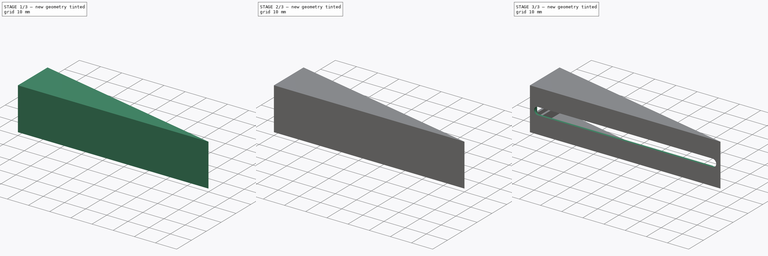
[diagram: build sequence overview — one tinted view per stage of 3, left to right]
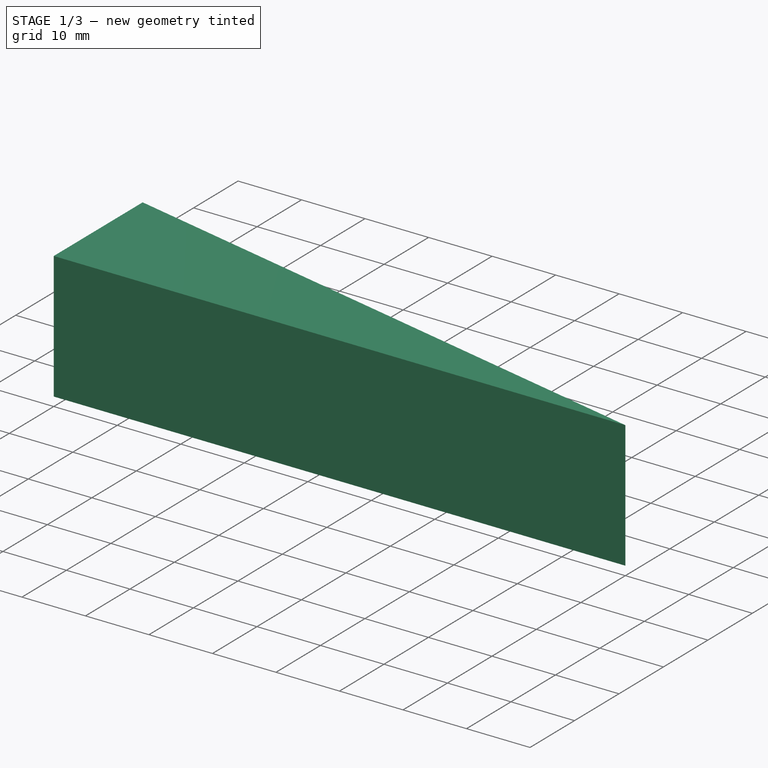
[diagram: stage 1 of 3 — iso view after this stage's code; geometry added in this stage tinted green]
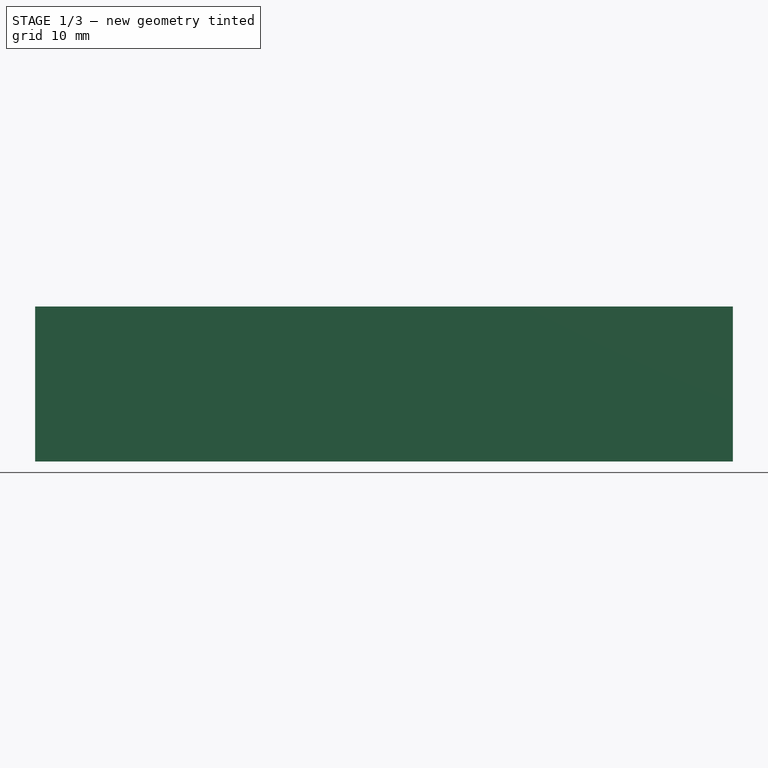
[diagram: stage 1 of 3 — front view after this stage's code; geometry added in this stage tinted green]
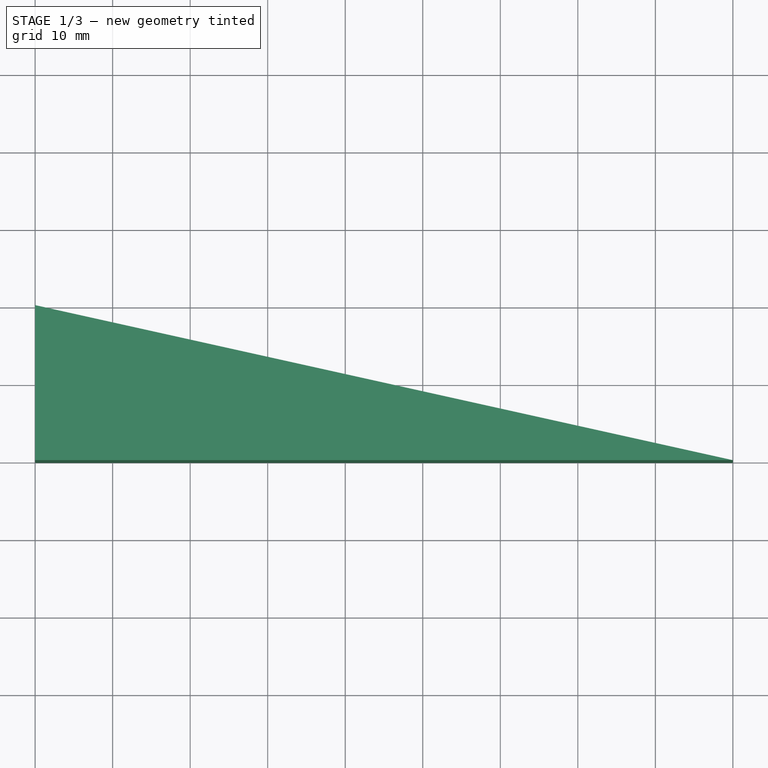
[diagram: stage 1 of 3 — top view after this stage's code; geometry added in this stage tinted green]
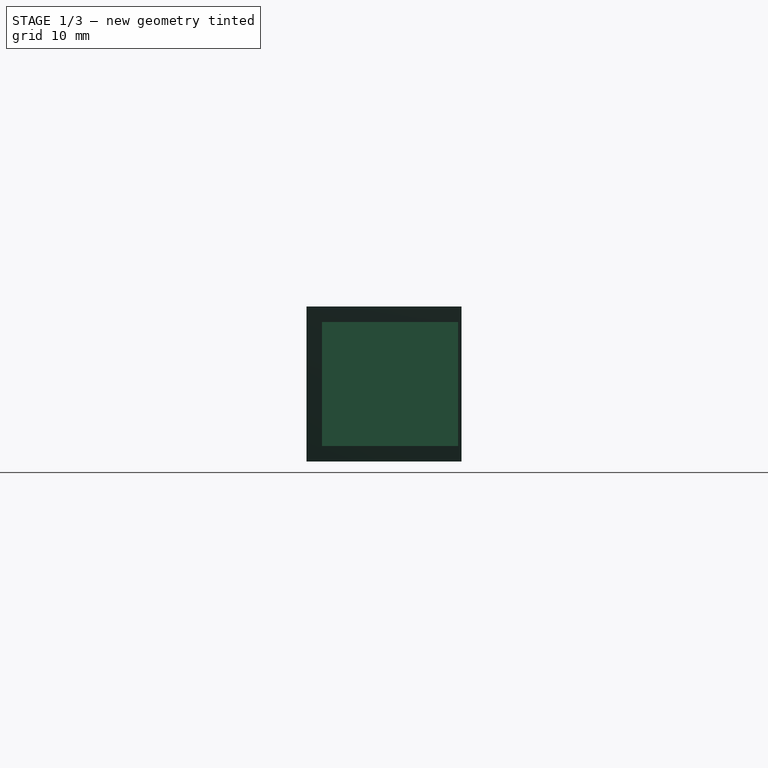
[diagram: stage 1 of 3 — right view after this stage's code; geometry added in this stage tinted green]
FCSTD DOCUMENT  (FreeCAD 1.0R39109 (Git))
Label: 2020_corner_bracket_M5_M3_long
License: All rights reserved
LicenseURL: https://en.wikipedia.org/wiki/All_rights_reserved
objects: Sketcher::SketchObject×6, PartDesign::Pocket×5, PartDesign::Pad×1, PartDesign::Body×1
note: 31 computed .brp shape members not serialized (recipe doc carries the construction recipe); baked Part::Feature solids carry a one-line shape summary decoded from their .brp

FEATURE [Sketcher::SketchObject] Sketch
  ArcFitTolerance = 1e-06
  AttachmentSupport = -> [XY_Plane]
  FullyConstrained = true
  MakeInternals = false
  MapMode = 5
  sketch-geometry (3):
    g0: LineSegment StartX=0 StartY=0 StartZ=0 EndX=0 EndY=20 EndZ=0
    g1: LineSegment StartX=0 StartY=20 StartZ=0 EndX=90 EndY=0 EndZ=0
    g2: LineSegment StartX=90 StartY=0 StartZ=0 EndX=0 EndY=0 EndZ=0
  constraints (8):
    c: Coincident(g0,g-1)
    c: PointOnObject(g0,g-2)
    c: Coincident(g1,g0)
    c: PointOnObject(g1,g-1)
    c: Coincident(g2,g1)
    c: Coincident(g2,g0)
    c: DistanceY(g0,g0) = 20
    c: DistanceX(g2,g2) = 90
FEATURE [PartDesign::Pad] Pad
  Direction = (0,0,1)
  Length = 20
  Length2 = 10
  Profile = -> Sketch
  ReferenceAxis = -> Sketch [N_Axis]
  Refine = true
  Suppressed = false
  Type = 0
FEATURE [Sketcher::SketchObject] Sketch001
  ArcFitTolerance = 1e-06
  AttachmentOffset = pos=(0,0,-2) rot=(0,0,1;0rad)
  AttachmentSupport = -> [XZ_Plane]
  FullyConstrained = true
  MakeInternals = false
  MapMode = 5
  Placement = pos=(0,2,-4e-16) rot=(1,0,0;1.5708rad)
  sketch-geometry (4):
    g0: LineSegment StartX=90 StartY=18 StartZ=0 EndX=2 EndY=18 EndZ=0
    g1: LineSegment StartX=2 StartY=18 StartZ=0 EndX=2 EndY=2 EndZ=0
    g2: LineSegment StartX=2 StartY=2 StartZ=0 EndX=90 EndY=2 EndZ=0
    g3: LineSegment StartX=90 StartY=2 StartZ=0 EndX=90 EndY=18 EndZ=0
  constraints (12):
    c: Coincident(g0,g1)
    c: Coincident(g1,g2)
    c: Coincident(g2,g3)
    c: Coincident(g3,g0)
    c: Horizontal(g0)
    c: Horizontal(g2)
    c: Vertical(g1)
    c: Vertical(g3)
    c: DistanceY(g3,g3) = 16
    c: DistanceX(g2,g2) = 88
    c: DistanceX(g1) = 2
    c: DistanceY(g1) = 2
FEATURE [PartDesign::Pocket] Pocket
  BaseFeature = -> Pad
  Direction = (0,1,-2e-16)
  Length = 5
  Length2 = 5
  Profile = -> Sketch001
  ReferenceAxis = -> Sketch001 [N_Axis]
  Refine = true
  Suppressed = false
  Type = 1
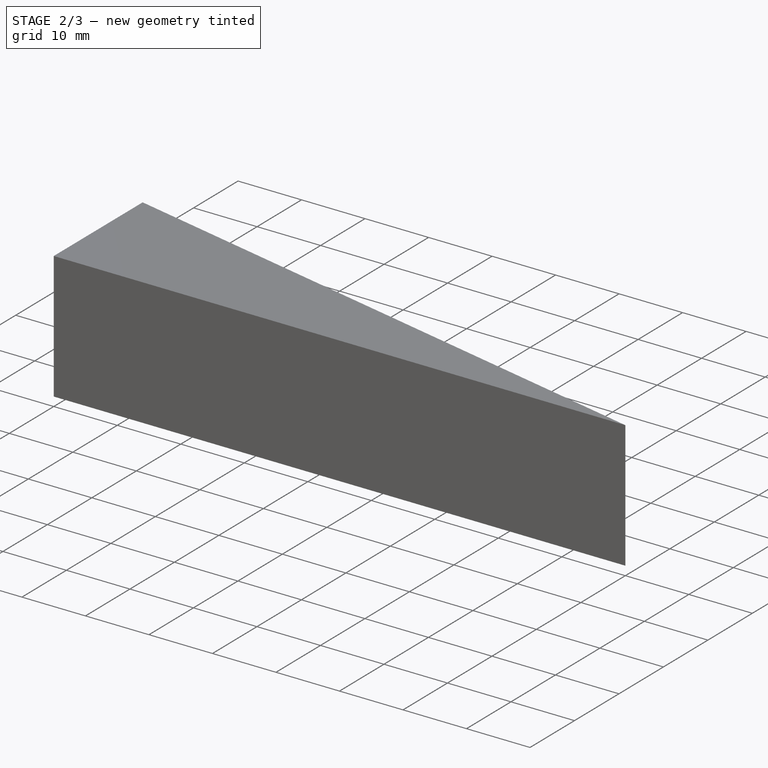
[diagram: stage 2 of 3 — iso view after this stage's code; geometry added in this stage tinted green]
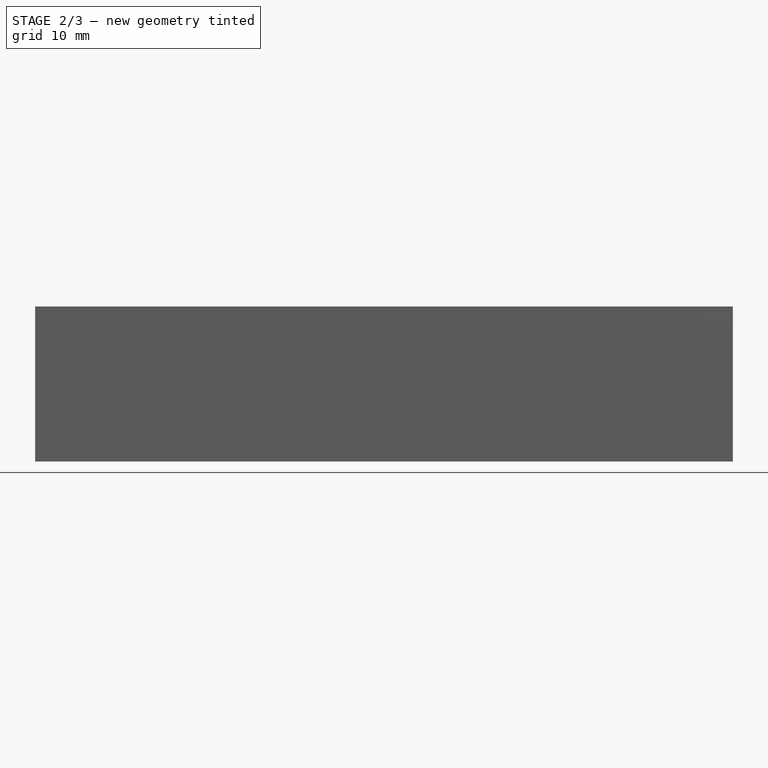
[diagram: stage 2 of 3 — front view after this stage's code; geometry added in this stage tinted green]
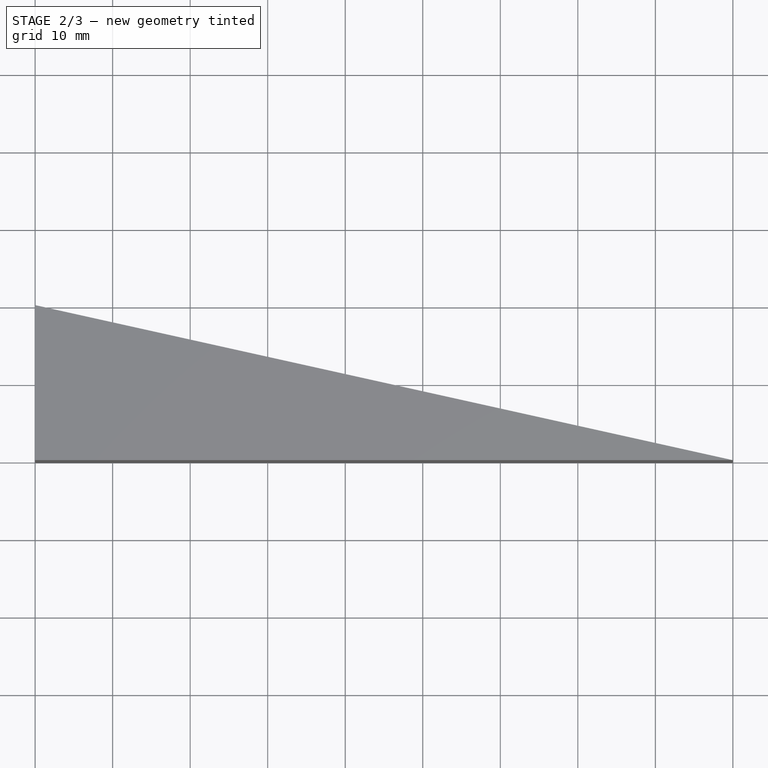
[diagram: stage 2 of 3 — top view after this stage's code; geometry added in this stage tinted green]
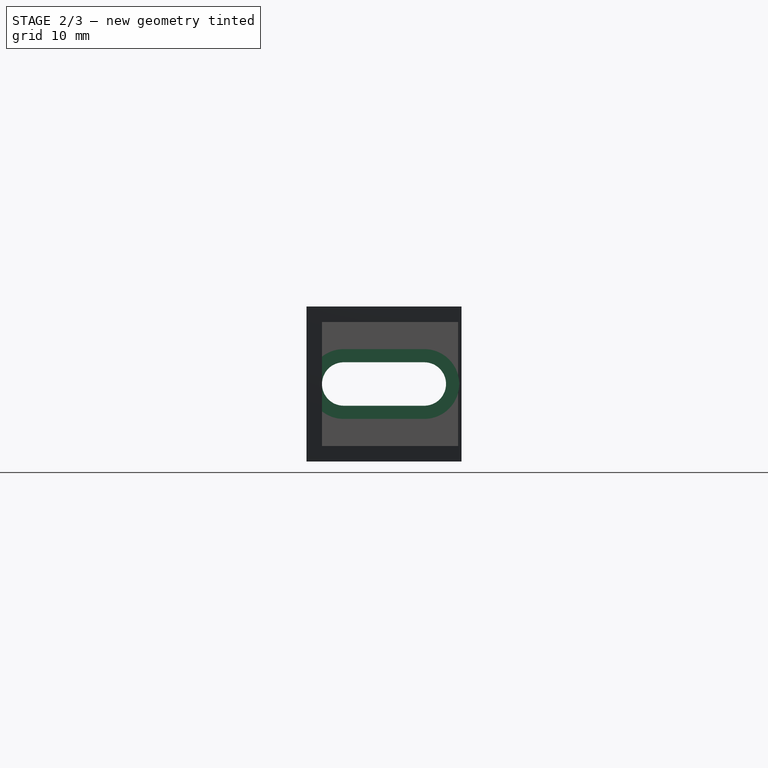
[diagram: stage 2 of 3 — right view after this stage's code; geometry added in this stage tinted green]
FEATURE [Sketcher::SketchObject] Sketch002
  ArcFitTolerance = 1e-06
  AttachmentSupport = -> [Pocket]
  FullyConstrained = true
  MakeInternals = false
  MapMode = 5
  Placement = pos=(2,0,0) rot=(0.57735,0.57735,0.57735;2.0944rad)
  sketch-geometry (8):
    g0: ArcOfCircle CenterX=4.8 CenterY=10 CenterZ=0 NormalX=0 NormalY=0 NormalZ=1 AngleXU=0 Radius=2.8 StartAngle=1.5708 EndAngle=4.71239
    g1: ArcOfCircle CenterX=15.2 CenterY=10 CenterZ=0 NormalX=0 NormalY=0 NormalZ=1 AngleXU=0 Radius=2.8 StartAngle=4.71239 EndAngle=7.85398
    g2: LineSegment StartX=4.8 StartY=12.8 StartZ=0 EndX=15.2 EndY=12.8 EndZ=0
    g3: LineSegment StartX=4.8 StartY=7.2 StartZ=0 EndX=15.2 EndY=7.2 EndZ=0
    g4: LineSegment [constr] StartX=2 StartY=2 StartZ=0 EndX=18 EndY=2 EndZ=0
    g5: LineSegment [constr] StartX=18 StartY=2 StartZ=0 EndX=18 EndY=18 EndZ=0
    g6: LineSegment [constr] StartX=18 StartY=18 StartZ=0 EndX=2 EndY=18 EndZ=0
    g7: LineSegment [constr] StartX=2 StartY=18 StartZ=0 EndX=2 EndY=2 EndZ=0
  constraints (22):
    c: Tangent(g0,g2) = 1.5708
    c: Tangent(g0,g3) = -1.5708
    c: Tangent(g1,g2) = 1.5708
    c: Tangent(g1,g3) = -1.5708
    c: Equal(g0,g1)
    c: Horizontal(g3)
    c: Diameter(g0) = 5.6
    c: DistanceY(g0) = 10
    c: Coincident(g4,g5)
    c: Coincident(g5,g6)
    c: Coincident(g6,g7)
    c: Coincident(g7,g4)
    c: Horizontal(g4)
    c: Horizontal(g6)
    c: Vertical(g5)
    c: Vertical(g7)
    c: DistanceX(g4,g4) = 16
    c: Equal(g4,g5)
    c: DistanceX(g4) = 2
    c: DistanceY(g4) = 2
    c: Tangent(g0,g7)
    c: Tangent(g1,g5)
FEATURE [PartDesign::Pocket] Pocket001
  BaseFeature = -> Pocket
  Direction = (-1,0,0)
  Length = 5
  Length2 = 5
  Profile = -> Sketch002
  ReferenceAxis = -> Sketch002 [N_Axis]
  Refine = true
  Suppressed = false
  Type = 1
FEATURE [Sketcher::SketchObject] Sketch003
  ArcFitTolerance = 1e-06
  AttachmentSupport = -> [Pocket001]
  FullyConstrained = true
  MakeInternals = false
  MapMode = 5
  Placement = pos=(2,0,0) rot=(0.57735,0.57735,0.57735;2.0944rad)
  expr: Constraints[15] = Sketch002.Constraints[16]
  expr: Constraints[17] = Sketch002.Constraints[18]
  expr: Constraints[18] = Sketch002.Constraints[19]
  expr: Constraints[5] = Sketch002.Constraints[6]
  expr: Constraints[6] = Sketch002.Constraints[7]
  sketch-geometry (15):
    g0: ArcOfCircle [constr] CenterX=4.8 CenterY=10 CenterZ=0 NormalX=0 NormalY=0 NormalZ=1 AngleXU=0 Radius=2.8 StartAngle=1.5708 EndAngle=4.71239
    g1: ArcOfCircle [constr] CenterX=15.2 CenterY=10 CenterZ=0 NormalX=0 NormalY=0 NormalZ=1 AngleXU=0 Radius=2.8 StartAngle=4.71239 EndAngle=7.85398
    g2: LineSegment [constr] StartX=4.8 StartY=12.8 StartZ=0 EndX=15.2 EndY=12.8 EndZ=0
    g3: LineSegment [constr] StartX=4.8 StartY=7.2 StartZ=0 EndX=15.2 EndY=7.2 EndZ=0
    g4: LineSegment [constr] StartX=2 StartY=2 StartZ=0 EndX=18 EndY=2 EndZ=0
    g5: LineSegment [constr] StartX=18 StartY=2 StartZ=0 EndX=18 EndY=18 EndZ=0
    g6: LineSegment [constr] StartX=18 StartY=18 StartZ=0 EndX=2 EndY=18 EndZ=0
    g7: LineSegment [constr] StartX=2 StartY=18 StartZ=0 EndX=2 EndY=2 EndZ=0
    g8: ArcOfCircle [constr] CenterX=4.8 CenterY=10 CenterZ=0 NormalX=0 NormalY=0 NormalZ=1 AngleXU=0 Radius=4.5 StartAngle=1.5708 EndAngle=4.71239
    g9: ArcOfCircle CenterX=15.2 CenterY=10 CenterZ=0 NormalX=0 NormalY=0 NormalZ=1 AngleXU=0 Radius=4.5 StartAngle=4.71239 EndAngle=7.85398
    g10: LineSegment StartX=4.8 StartY=14.5 StartZ=0 EndX=15.2 EndY=14.5 EndZ=0
    g11: LineSegment StartX=4.8 StartY=5.5 StartZ=0 EndX=15.2 EndY=5.5 EndZ=0
    g12: LineSegment StartX=2 StartY=13.5228 StartZ=0 EndX=2 EndY=6.47722 EndZ=0
    g13: ArcOfCircle CenterX=4.8 CenterY=10 CenterZ=0 NormalX=0 NormalY=0 NormalZ=1 AngleXU=0 Radius=4.5 StartAngle=4.04081 EndAngle=4.71239
    g14: ArcOfCircle CenterX=4.8 CenterY=10 CenterZ=0 NormalX=0 NormalY=0 NormalZ=1 AngleXU=0 Radius=4.5 StartAngle=1.5708 EndAngle=2.24237
  constraints (38):
    c: Tangent(g0,g2) = 1.5708
    c: Tangent(g1,g2) = 1.5708
    c: Tangent(g1,g3) = -1.5708
    c: Equal(g0,g1)
    c: Horizontal(g3)
    c: Diameter(g0) = 5.6
    c: DistanceY(g0) = 10
    c: Coincident(g4,g5)
    c: Coincident(g5,g6)
    c: Coincident(g6,g7)
    c: Coincident(g7,g4)
    c: Horizontal(g4)
    c: Horizontal(g6)
    c: Vertical(g5)
    c: Vertical(g7)
    c: DistanceX(g4,g4) = 16
    c: Equal(g4,g5)
    c: DistanceX(g4) = 2
    c: DistanceY(g4) = 2
    c: Tangent(g0,g7)
    c: Tangent(g1,g5)
    c: Tangent(g8,g10) = 1.5708
    c: Tangent(g8,g11) = -1.5708
    c: Tangent(g9,g10) = 1.5708
    c: Tangent(g9,g11) = -1.5708
    c: Equal(g8,g9)
    c: Coincident(g8,g0)
    c: Coincident(g9,g1)
    c: Diameter(g8) = 9
    c: Vertical(g12)
    c: Coincident(g13,g0)
    c: Coincident(g13,g8)
    c: Coincident(g13,g12)
    c: Coincident(g14,g8)
    c: Coincident(g14,g12)
    c: DistanceX(g4,g12) = 0
    c: Coincident(g14,g0)
    c: Tangent(g3,g0) = -1.5708
FEATURE [PartDesign::Pocket] Pocket002
  BaseFeature = -> Pocket001
  Direction = (-1,0,0)
  Length = 1
  Length2 = 5
  Profile = -> Sketch003
  ReferenceAxis = -> Sketch003 [N_Axis]
  Refine = true
  Suppressed = false
  Type = 4
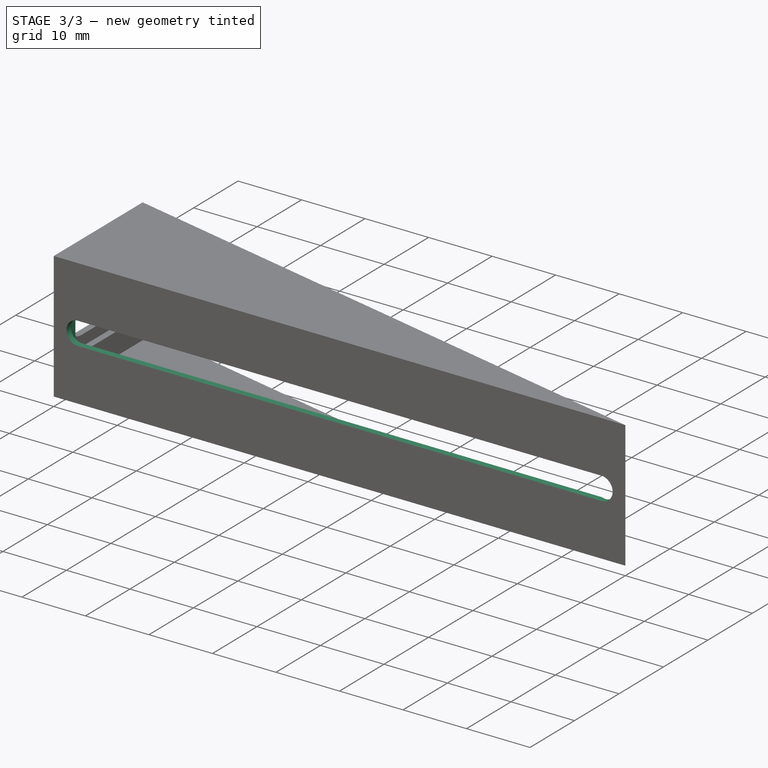
[diagram: stage 3 of 3 — iso view after this stage's code; geometry added in this stage tinted green]
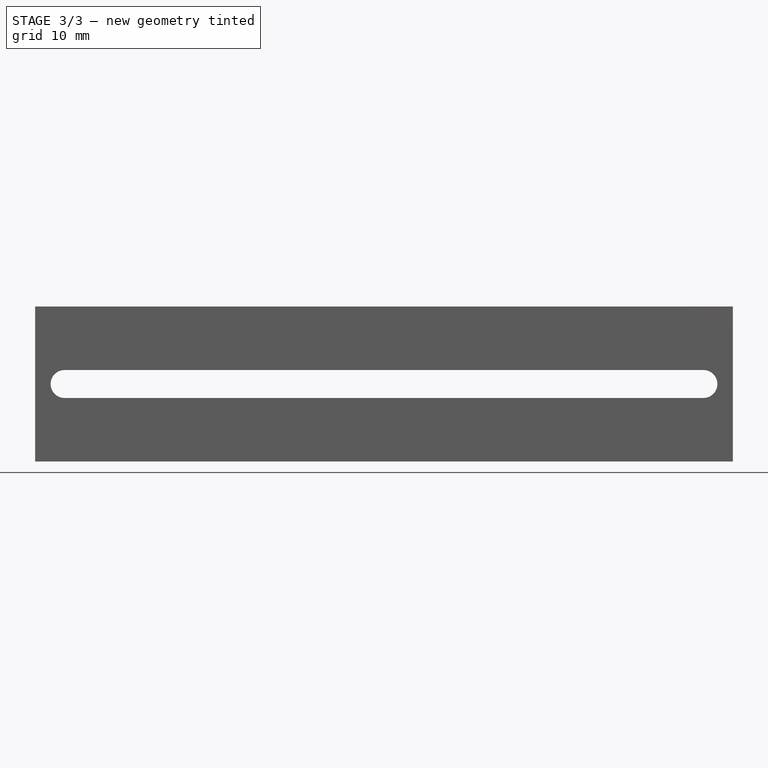
[diagram: stage 3 of 3 — front view after this stage's code; geometry added in this stage tinted green]
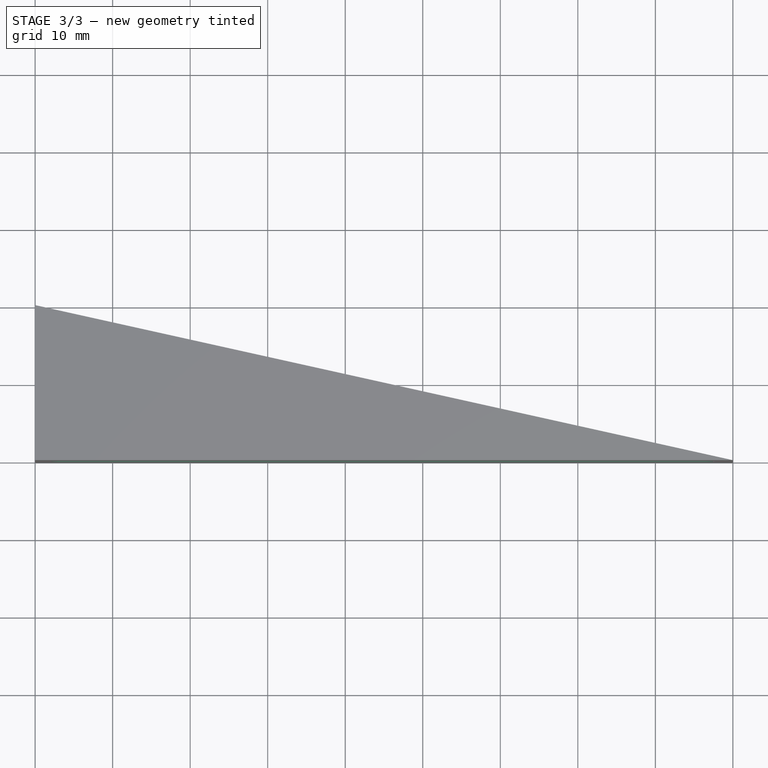
[diagram: stage 3 of 3 — top view after this stage's code; geometry added in this stage tinted green]
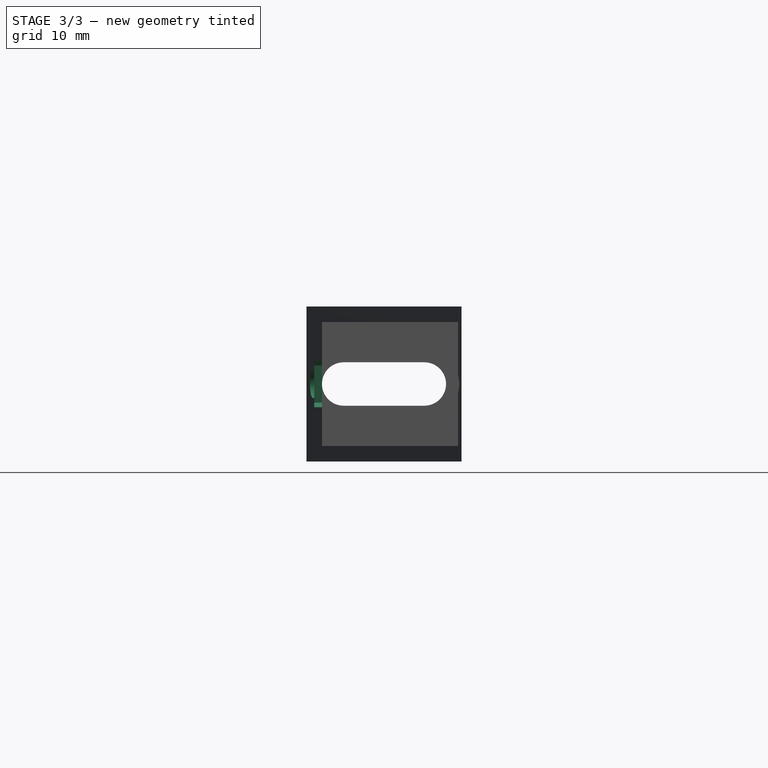
[diagram: stage 3 of 3 — right view after this stage's code; geometry added in this stage tinted green]
FEATURE [Sketcher::SketchObject] Sketch004
  ArcFitTolerance = 1e-06
  AttachmentSupport = -> [Pocket002]
  FullyConstrained = true
  MakeInternals = false
  MapMode = 5
  Placement = pos=(0,2,0) rot=(0,0.707107,0.707107;3.14159rad)
  sketch-geometry (8):
    g0: ArcOfCircle CenterX=-86.2 CenterY=10 CenterZ=0 NormalX=0 NormalY=0 NormalZ=1 AngleXU=0 Radius=1.8 StartAngle=1.5708 EndAngle=4.71239
    g1: ArcOfCircle CenterX=-3.8 CenterY=10 CenterZ=0 NormalX=0 NormalY=0 NormalZ=1 AngleXU=0 Radius=1.8 StartAngle=4.71239 EndAngle=7.85398
    g2: LineSegment StartX=-86.2 StartY=11.8 StartZ=0 EndX=-3.8 EndY=11.8 EndZ=0
    g3: LineSegment StartX=-86.2 StartY=8.2 StartZ=0 EndX=-3.8 EndY=8.2 EndZ=0
    g4: LineSegment [constr] StartX=-88 StartY=2 StartZ=0 EndX=-2 EndY=2 EndZ=0
    g5: LineSegment [constr] StartX=-2 StartY=2 StartZ=0 EndX=-2 EndY=88 EndZ=0
    g6: LineSegment [constr] StartX=-2 StartY=88 StartZ=0 EndX=-88 EndY=88 EndZ=0
    g7: LineSegment [constr] StartX=-88 StartY=88 StartZ=0 EndX=-88 EndY=2 EndZ=0
  constraints (22):
    c: Tangent(g0,g2) = 1.5708
    c: Tangent(g0,g3) = -1.5708
    c: Tangent(g1,g2) = 1.5708
    c: Tangent(g1,g3) = -1.5708
    c: Equal(g0,g1)
    c: Horizontal(g3)
    c: Coincident(g4,g5)
    c: Coincident(g5,g6)
    c: Coincident(g6,g7)
    c: Coincident(g7,g4)
    c: Horizontal(g4)
    c: Horizontal(g6)
    c: Vertical(g5)
    c: Vertical(g7)
    c: DistanceX(g4,g4) = 86
    c: Equal(g4,g7)
    c: Tangent(g1,g5)
    c: Tangent(g0,g7)
    c: DistanceX(g4) = -2
    c: DistanceY(g4) = 2
    c: DistanceY(g1) = 10
    c: Diameter(g0) = 3.6
FEATURE [PartDesign::Pocket] Pocket003
  BaseFeature = -> Pocket002
  Direction = (0,-1,2e-16)
  Length = 5
  Length2 = 5
  Profile = -> Sketch004
  ReferenceAxis = -> Sketch004 [N_Axis]
  Refine = true
  Suppressed = false
  Type = 1
FEATURE [Sketcher::SketchObject] Sketch005
  ArcFitTolerance = 1e-06
  AttachmentSupport = -> [Pocket003]
  FullyConstrained = true
  MakeInternals = false
  MapMode = 5
  Placement = pos=(0,2,0) rot=(0,0.707107,0.707107;3.14159rad)
  expr: Constraints[14] = Sketch004.Constraints[14]
  expr: Constraints[18] = Sketch004.Constraints[18]
  expr: Constraints[19] = Sketch004.Constraints[19]
  expr: Constraints[20] = Sketch004.Constraints[20]
  expr: Constraints[21] = Sketch004.Constraints[21]
  sketch-geometry (15):
    g0: ArcOfCircle [constr] CenterX=-86.2 CenterY=10 CenterZ=0 NormalX=0 NormalY=0 NormalZ=1 AngleXU=0 Radius=1.8 StartAngle=1.5708 EndAngle=4.71239
    g1: ArcOfCircle [constr] CenterX=-3.8 CenterY=10 CenterZ=0 NormalX=0 NormalY=0 NormalZ=1 AngleXU=0 Radius=1.8 StartAngle=4.71239 EndAngle=7.85398
    g2: LineSegment [constr] StartX=-86.2 StartY=11.8 StartZ=0 EndX=-3.8 EndY=11.8 EndZ=0
    g3: LineSegment [constr] StartX=-86.2 StartY=8.2 StartZ=0 EndX=-3.8 EndY=8.2 EndZ=0
    g4: LineSegment [constr] StartX=-88 StartY=2 StartZ=0 EndX=-2 EndY=2 EndZ=0
    g5: LineSegment [constr] StartX=-2 StartY=2 StartZ=0 EndX=-2 EndY=88 EndZ=0
    g6: LineSegment [constr] StartX=-2 StartY=88 StartZ=0 EndX=-88 EndY=88 EndZ=0
    g7: LineSegment [constr] StartX=-88 StartY=88 StartZ=0 EndX=-88 EndY=2 EndZ=0
    g8: ArcOfCircle CenterX=-86.2 CenterY=10 CenterZ=0 NormalX=0 NormalY=0 NormalZ=1 AngleXU=0 Radius=3 StartAngle=1.5708 EndAngle=4.71239
    g9: ArcOfCircle [constr] CenterX=-3.8 CenterY=10 CenterZ=0 NormalX=0 NormalY=0 NormalZ=1 AngleXU=0 Radius=3 StartAngle=4.71239 EndAngle=7.85398
    g10: LineSegment StartX=-86.2 StartY=13 StartZ=0 EndX=-3.8 EndY=13 EndZ=0
    g11: LineSegment StartX=-86.2 StartY=7 StartZ=0 EndX=-3.8 EndY=7 EndZ=0
    g12: LineSegment StartX=-2 StartY=12.4 StartZ=0 EndX=-2 EndY=7.6 EndZ=0
    g13: ArcOfCircle CenterX=-3.8 CenterY=10 CenterZ=0 NormalX=0 NormalY=0 NormalZ=1 AngleXU=0 Radius=3 StartAngle=0.927295 EndAngle=1.5708
    g14: ArcOfCircle CenterX=-3.8 CenterY=10 CenterZ=0 NormalX=0 NormalY=0 NormalZ=1 AngleXU=0 Radius=3 StartAngle=4.71239 EndAngle=5.35589
  constraints (38):
    c: Tangent(g0,g2) = 1.5708
    c: Tangent(g0,g3) = -1.5708
    c: Tangent(g1,g2) = 1.5708
    c: Tangent(g1,g3) = -1.5708
    c: Equal(g0,g1)
    c: Horizontal(g3)
    c: Coincident(g4,g5)
    c: Coincident(g5,g6)
    c: Coincident(g6,g7)
    c: Coincident(g7,g4)
    c: Horizontal(g4)
    c: Horizontal(g6)
    c: Vertical(g5)
    c: Vertical(g7)
    c: DistanceX(g4,g4) = 86
    c: Equal(g4,g7)
    c: Tangent(g1,g5)
    c: Tangent(g0,g7)
    c: DistanceX(g4) = -2
    c: DistanceY(g4) = 2
    c: DistanceY(g1) = 10
    c: Diameter(g0) = 3.6
    c: Tangent(g8,g10) = 1.5708
    c: Tangent(g8,g11) = -1.5708
    c: Tangent(g9,g10) = 1.5708
    c: Tangent(g9,g11) = -1.5708
    c: Equal(g8,g9)
    c: Coincident(g8,g0)
    c: Coincident(g9,g1)
    c: Diameter(g8) = 6
    c: PointOnObject(g12,g5)
    c: PointOnObject(g12,g5)
    c: Coincident(g13,g1)
    c: Coincident(g13,g12)
    c: Coincident(g13,g9)
    c: Coincident(g14,g1)
    c: Coincident(g14,g12)
    c: Coincident(g14,g9)
FEATURE [PartDesign::Pocket] Pocket004
  BaseFeature = -> Pocket003
  Direction = (0,-1,2e-16)
  Length = 1
  Length2 = 5
  Profile = -> Sketch005
  ReferenceAxis = -> Sketch005 [N_Axis]
  Refine = true
  Suppressed = false
  Type = 0
FEATURE [PartDesign::Body] Body
  AllowCompound = false
  Group = -> [Sketch,Pad,Sketch001,Pocket,Sketch002,Pocket001,Sketch003,Pocket002,Sketch004,Pocket003,Sketch005,Pocket004]
  Origin = -> Origin
  Tip = -> Pocket004
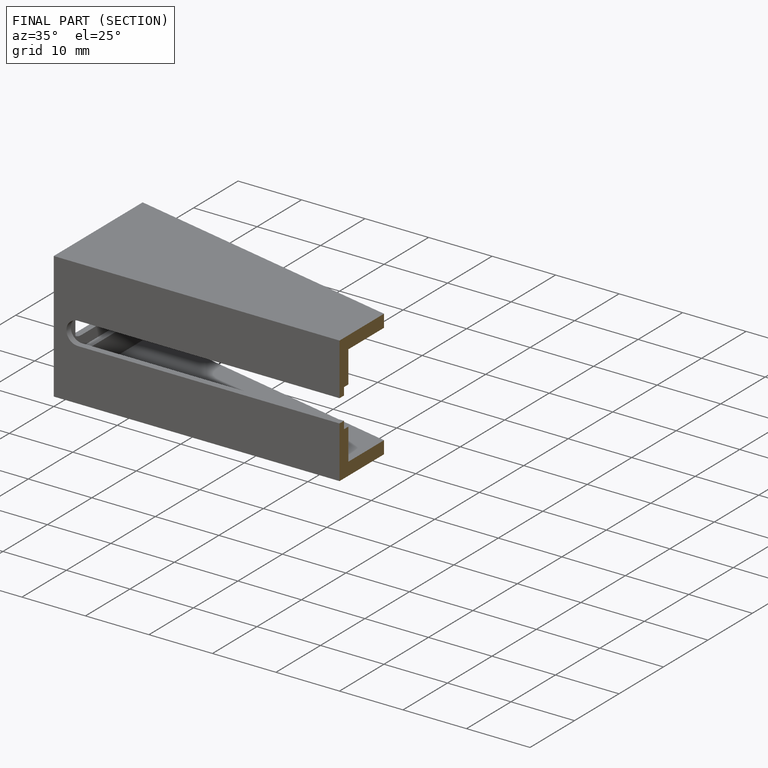
[diagram: finished part — half-section view (interior)]
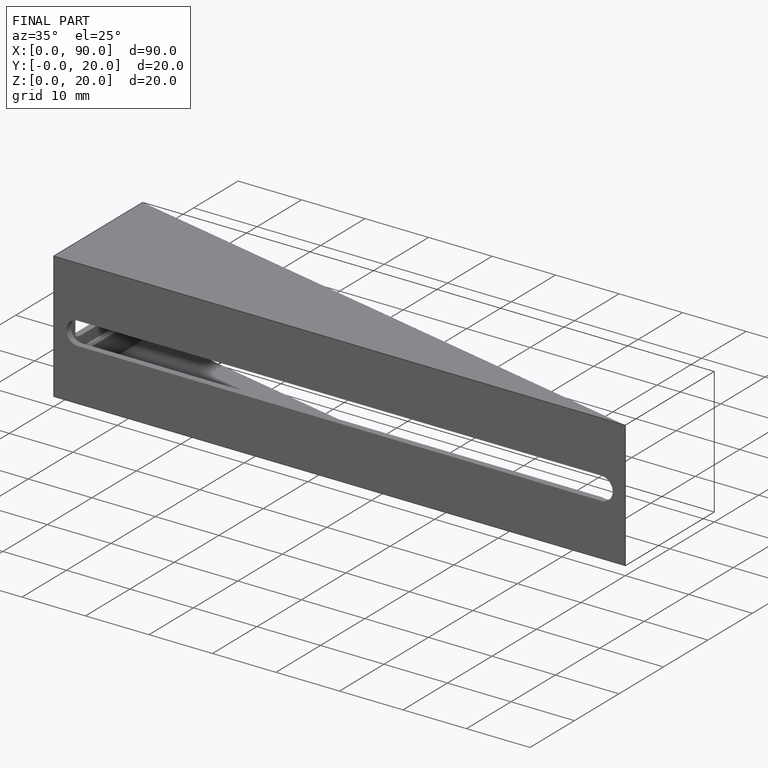
[diagram: finished part — iso view with bounding-box wireframe]
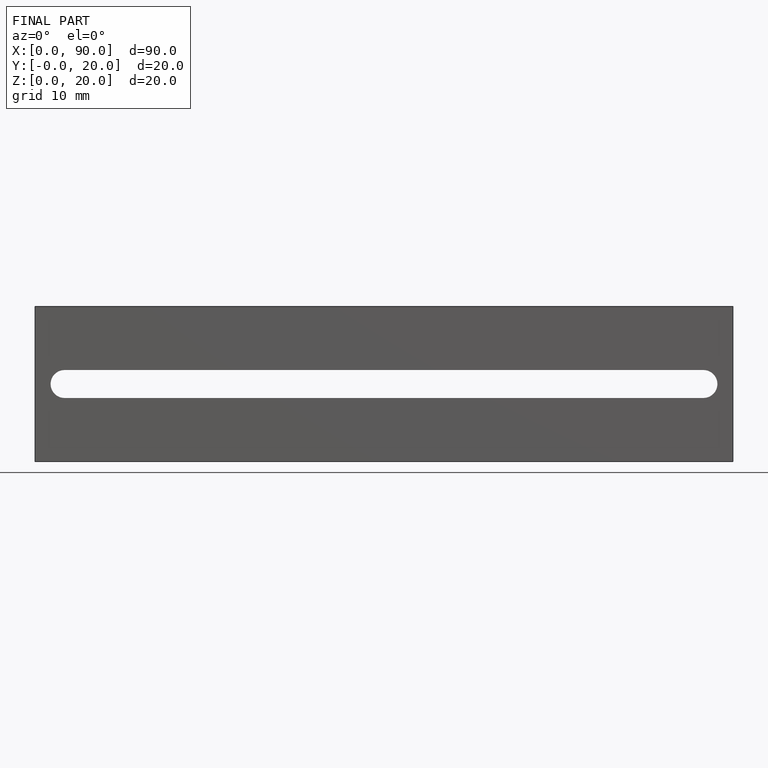
[diagram: finished part — front view with bounding-box wireframe]
